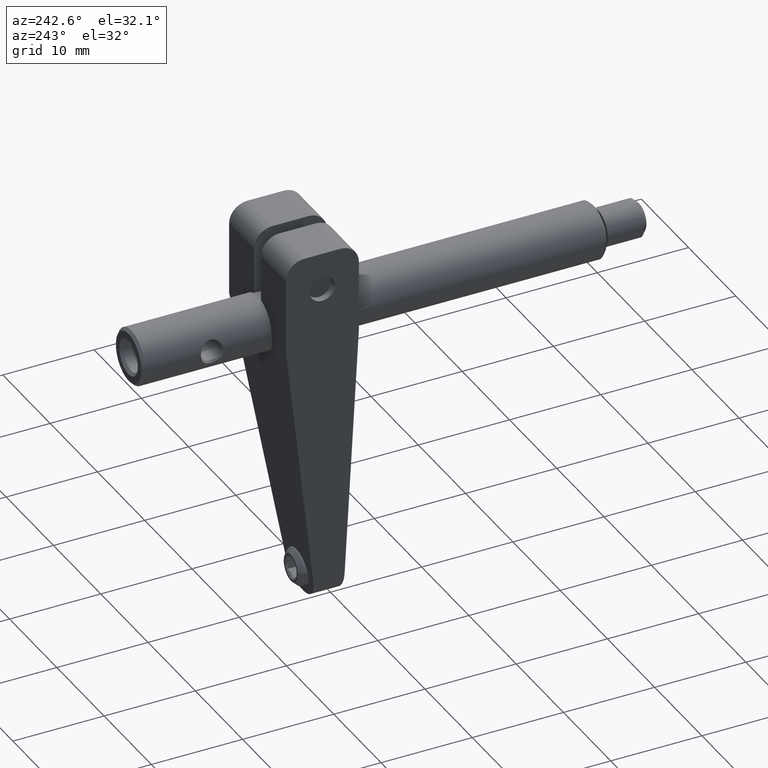
[diagram: clean part render]
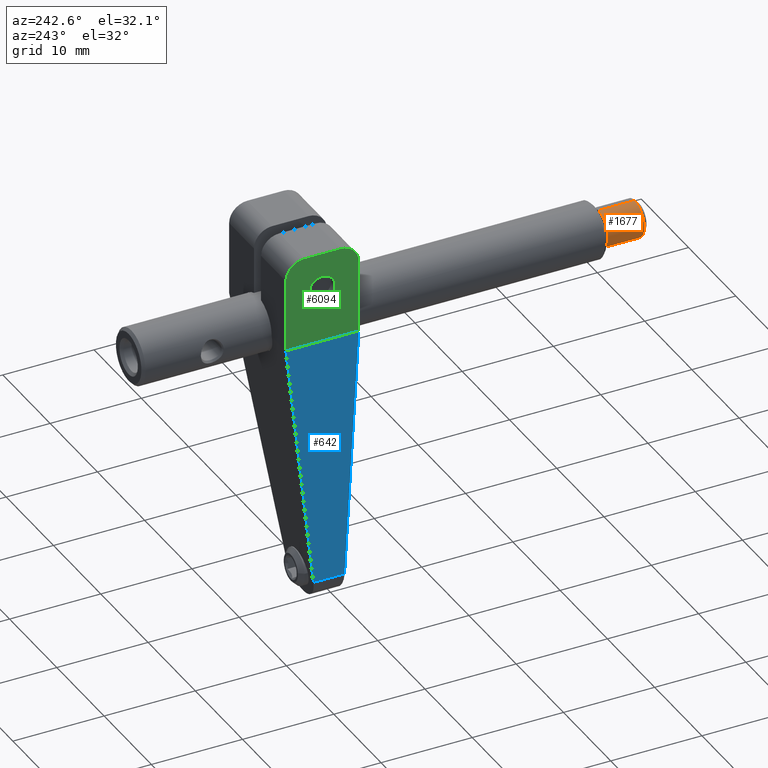
[diagram: same view with three faces highlighted in distinct colors, each labeled with its STEP entity id]
A machine part, auxiliary view with three faces highlighted in distinct colors.
Their STEP definitions:

[orange] entity #1677 — the highlighted cylindrical surface (edge-blend (fillet) strip) has radius 2 mm, axis along (-0, -1, 0).
#129 = DIRECTION ( 'NONE',  ( 7.524126418315677842E-17, 1.000000000000000000, -7.612291374223364996E-17 ) ) ;
#178 = DIRECTION ( 'NONE',  ( 1.249000902703302094E-16, 0.0000000000000000000, 1.000000000000000000 ) ) ;
#200 = CARTESIAN_POINT ( 'NONE',  ( 2.471266697707588180E-15, -33.37046049776430579, -8.717379670110583827E-15 ) ) ;
#321 = EDGE_CURVE ( 'NONE', #4051, #4746, #2092, .T. ) ;
#421 = DIRECTION ( 'NONE',  ( -7.524126418315677842E-17, -1.000000000000000000, 7.612291374223364996E-17 ) ) ;
#701 = AXIS2_PLACEMENT_3D ( 'NONE', #1767, #3150, #3759 ) ;
#1029 = ORIENTED_EDGE ( 'NONE', *, *, #4700, .F. ) ;
#1089 = CARTESIAN_POINT ( 'NONE',  ( 2.772231754440213025E-15, -29.37046049776450829, -9.021871325079517737E-15 ) ) ;
#1554 = DIRECTION ( 'NONE',  ( 1.249000902703302094E-16, 0.0000000000000000000, 1.000000000000000000 ) ) ;
#1562 = LINE ( 'NONE', #3568, #2731 ) ;
#1568 = ORIENTED_EDGE ( 'NONE', *, *, #3680, .T. ) ;
#1570 = EDGE_LOOP ( 'NONE', ( #2839, #1568, #6113, #1029 ) ) ;
#1659 = DIRECTION ( 'NONE',  ( 7.524126418315677842E-17, 1.000000000000000000, -7.612291374223364996E-17 ) ) ;
#1677 = ADVANCED_FACE ( 'NONE', ( #6136 ), #3177, .T. ) ;
#1767 = CARTESIAN_POINT ( 'NONE',  ( 2.809852386531791230E-15, -28.87046049776450829, -9.059932781950636053E-15 ) ) ;
#2068 = DIRECTION ( 'NONE',  ( -7.524126418315677842E-17, -1.000000000000000000, 7.612291374223364996E-17 ) ) ;
#2092 = CIRCLE ( 'NONE', #6419, 2.000000000000000000 ) ;
#2731 = VECTOR ( 'NONE', #2068, 1000.000000000000000 ) ;
#2839 = ORIENTED_EDGE ( 'NONE', *, *, #321, .F. ) ;
#3150 = DIRECTION ( 'NONE',  ( -7.524126418315677842E-17, -1.000000000000000000, 7.612291374223364996E-17 ) ) ;
#3177 = CYLINDRICAL_SURFACE ( 'NONE', #701, 2.000000000000000000 ) ;
#3207 = EDGE_CURVE ( 'NONE', #5375, #3229, #4851, .T. ) ;
#3229 = VERTEX_POINT ( 'NONE', #4634 ) ;
#3445 = LINE ( 'NONE', #5297, #4147 ) ;
#3568 = CARTESIAN_POINT ( 'NONE',  ( 3.059652567072451846E-15, -28.87046049776450829, 1.999999999999990896 ) ) ;
#3680 = EDGE_CURVE ( 'NONE', #4051, #5375, #3445, .T. ) ;
#3759 = DIRECTION ( 'NONE',  ( 1.249000902703302094E-16, 0.0000000000000000000, 1.000000000000000000 ) ) ;
#4051 = VERTEX_POINT ( 'NONE', #4370 ) ;
#4147 = VECTOR ( 'NONE', #421, 1000.000000000000000 ) ;
#4370 = CARTESIAN_POINT ( 'NONE',  ( 2.127019685703781918E-15, -29.37046049776450829, -2.000000000000009326 ) ) ;
#4634 = CARTESIAN_POINT ( 'NONE',  ( 2.476137518418779683E-15, -33.37046049776430579, 1.999999999999996669 ) ) ;
#4700 = EDGE_CURVE ( 'NONE', #4746, #3229, #1562, .T. ) ;
#4746 = VERTEX_POINT ( 'NONE', #5530 ) ;
#4851 = CIRCLE ( 'NONE', #5417, 2.000000000000000000 ) ;
#5297 = CARTESIAN_POINT ( 'NONE',  ( 2.315122846161662684E-15, -28.87046049776450829, -2.000000000000009326 ) ) ;
#5375 = VERTEX_POINT ( 'NONE', #5830 ) ;
#5417 = AXIS2_PLACEMENT_3D ( 'NONE', #200, #1659, #178 ) ;
#5530 = CARTESIAN_POINT ( 'NONE',  ( 3.022031934980873642E-15, -29.37046049776450829, 1.999999999999990896 ) ) ;
#5830 = CARTESIAN_POINT ( 'NONE',  ( 2.221466517166927169E-15, -33.37046049776430579, -2.000000000000013323 ) ) ;
#6113 = ORIENTED_EDGE ( 'NONE', *, *, #3207, .T. ) ;
#6136 = FACE_OUTER_BOUND ( 'NONE', #1570, .T. ) ;
#6419 = AXIS2_PLACEMENT_3D ( 'NONE', #1089, #129, #1554 ) ;

[blue] entity #642 — the highlighted planar face has unit normal (0.9949, -0, 0.1013).
#436 = CARTESIAN_POINT ( 'NONE',  ( -3.054416292723197923, 3.523503927922773116, -28.91816462561913070 ) ) ;
#642 = ADVANCED_FACE ( 'NONE', ( #2864 ), #5456, .F. ) ;
#654 = ORIENTED_EDGE ( 'NONE', *, *, #900, .F. ) ;
#703 = EDGE_CURVE ( 'NONE', #5943, #5069, #1379, .T. ) ;
#900 = EDGE_CURVE ( 'NONE', #4311, #5069, #2633, .T. ) ;
#1201 = CARTESIAN_POINT ( 'NONE',  ( -2.984557093065598465, 3.417336708130938927, -29.60400486547437993 ) ) ;
#1379 = LINE ( 'NONE', #2085, #2093 ) ;
#1611 = AXIS2_PLACEMENT_3D ( 'NONE', #2476, #2983, #3434 ) ;
#1808 = CARTESIAN_POINT ( 'NONE',  ( -6.000000000000052403, 8.000000000000000000, 2.572361415718436921E-15 ) ) ;
#1908 = DIRECTION ( 'NONE',  ( 0.1001542559867147214, -0.1522075683738858543, -0.9832608916953101685 ) ) ;
#2085 = CARTESIAN_POINT ( 'NONE',  ( -2.984557093065598465, 7.231732120549430660E-15, -29.60400486547437993 ) ) ;
#2093 = VECTOR ( 'NONE', #6035, 1000.000000000000000 ) ;
#2115 = ORIENTED_EDGE ( 'NONE', *, *, #703, .T. ) ;
#2354 = LINE ( 'NONE', #4398, #4304 ) ;
#2404 = VECTOR ( 'NONE', #4176, 1000.000000000000000 ) ;
#2413 = VECTOR ( 'NONE', #1908, 1000.000000000000114 ) ;
#2476 = CARTESIAN_POINT ( 'NONE',  ( -2.984557093065598465, 8.000000000000007105, -29.60400486547437637 ) ) ;
#2633 = LINE ( 'NONE', #4018, #2404 ) ;
#2864 = FACE_OUTER_BOUND ( 'NONE', #4470, .T. ) ;
#2983 = DIRECTION ( 'NONE',  ( 0.9948523643551911988, -7.150080595686750573E-18, 0.1013349551580598612 ) ) ;
#3121 = CARTESIAN_POINT ( 'NONE',  ( -6.000000000000052403, -1.072736176634379454E-16, 8.326672684688777591E-17 ) ) ;
#3434 = DIRECTION ( 'NONE',  ( 0.1013349551580598473, 2.466297125627225561E-16, -0.9948523643551910878 ) ) ;
#3613 = EDGE_CURVE ( 'NONE', #5851, #5943, #2354, .T. ) ;
#3902 = EDGE_CURVE ( 'NONE', #4311, #5851, #6392, .T. ) ;
#4018 = CARTESIAN_POINT ( 'NONE',  ( -6.000000000000052403, 8.000000000000000000, 2.051944372925394398E-15 ) ) ;
#4148 = CARTESIAN_POINT ( 'NONE',  ( -2.984557093065598465, 7.231732120549430660E-15, -29.60400486547437993 ) ) ;
#4176 = DIRECTION ( 'NONE',  ( 1.787893627723963292E-17, -1.000000000000000000, -2.460847057598134572E-16 ) ) ;
#4304 = VECTOR ( 'NONE', #5346, 1000.000000000000000 ) ;
#4311 = VERTEX_POINT ( 'NONE', #1808 ) ;
#4398 = CARTESIAN_POINT ( 'NONE',  ( -2.984557093065598465, 8.000000000000007105, -29.60400486547437637 ) ) ;
#4460 = ORIENTED_EDGE ( 'NONE', *, *, #3613, .T. ) ;
#4470 = EDGE_LOOP ( 'NONE', ( #654, #6187, #4460, #2115 ) ) ;
#5069 = VERTEX_POINT ( 'NONE', #3121 ) ;
#5346 = DIRECTION ( 'NONE',  ( 1.787893627723963292E-17, -1.000000000000000000, -2.460847057598134572E-16 ) ) ;
#5456 = PLANE ( 'NONE',  #1611 ) ;
#5851 = VERTEX_POINT ( 'NONE', #1201 ) ;
#5943 = VERTEX_POINT ( 'NONE', #4148 ) ;
#6035 = DIRECTION ( 'NONE',  ( -0.1013349551580598612, -2.466297125627226547E-16, 0.9948523643551911988 ) ) ;
#6187 = ORIENTED_EDGE ( 'NONE', *, *, #3902, .T. ) ;
#6392 = LINE ( 'NONE', #436, #2413 ) ;

[green] entity #6094 — the highlighted planar face has unit normal (1, 0, -0).
#74 = EDGE_CURVE ( 'NONE', #2809, #665, #5447, .T. ) ;
#152 = CARTESIAN_POINT ( 'NONE',  ( -6.000000000000051514, 3.999999999999998224, 7.400000000000050981 ) ) ;
#157 = ORIENTED_EDGE ( 'NONE', *, *, #4898, .T. ) ;
#198 = CARTESIAN_POINT ( 'NONE',  ( -6.000000000000051514, 1.999999999999997780, 8.000000000000049738 ) ) ;
#306 = CIRCLE ( 'NONE', #1172, 1.400000000000007905 ) ;
#325 = CARTESIAN_POINT ( 'NONE',  ( -6.000000000000051514, 7.999999999999998224, 10.00000000000005151 ) ) ;
#392 = ORIENTED_EDGE ( 'NONE', *, *, #4210, .T. ) ;
#414 = ORIENTED_EDGE ( 'NONE', *, *, #74, .T. ) ;
#439 = AXIS2_PLACEMENT_3D ( 'NONE', #3216, #4211, #4297 ) ;
#480 = ORIENTED_EDGE ( 'NONE', *, *, #3779, .F. ) ;
#553 = DIRECTION ( 'NONE',  ( -1.000000000000000000, -1.787893627723955588E-17, 1.006139616066549594E-16 ) ) ;
#645 = CARTESIAN_POINT ( 'NONE',  ( -6.000000000000051514, 7.999999999999998224, 10.00000000000005151 ) ) ;
#665 = VERTEX_POINT ( 'NONE', #1466 ) ;
#900 = EDGE_CURVE ( 'NONE', #4311, #5069, #2633, .T. ) ;
#923 = FACE_OUTER_BOUND ( 'NONE', #1494, .T. ) ;
#1083 = CARTESIAN_POINT ( 'NONE',  ( -6.000000000000051514, -2.075951263741900478E-15, 8.000000000000049738 ) ) ;
#1172 = AXIS2_PLACEMENT_3D ( 'NONE', #4779, #3315, #2787 ) ;
#1466 = CARTESIAN_POINT ( 'NONE',  ( -6.000000000000051514, 1.999999999999997335, 10.00000000000004974 ) ) ;
#1494 = EDGE_LOOP ( 'NONE', ( #4153, #157, #480, #2921, #4232, #414 ) ) ;
#1617 = CARTESIAN_POINT ( 'NONE',  ( -6.000000000000051514, 5.999999999999997335, 10.00000000000005151 ) ) ;
#1637 = VERTEX_POINT ( 'NONE', #152 ) ;
#1729 = VERTEX_POINT ( 'NONE', #2310 ) ;
#1808 = CARTESIAN_POINT ( 'NONE',  ( -6.000000000000052403, 8.000000000000000000, 2.572361415718436921E-15 ) ) ;
#2310 = CARTESIAN_POINT ( 'NONE',  ( -6.000000000000051514, 7.999999999999998224, 8.000000000000051514 ) ) ;
#2372 = VERTEX_POINT ( 'NONE', #4161 ) ;
#2404 = VECTOR ( 'NONE', #4176, 1000.000000000000000 ) ;
#2421 = CIRCLE ( 'NONE', #4924, 2.000000000000012879 ) ;
#2588 = DIRECTION ( 'NONE',  ( -1.000000000000000000, -1.787893627723955588E-17, 1.006139616066549594E-16 ) ) ;
#2633 = LINE ( 'NONE', #4018, #2404 ) ;
#2695 = DIRECTION ( 'NONE',  ( 0.0000000000000000000, 2.168404344970994816E-16, -1.000000000000000000 ) ) ;
#2777 = EDGE_CURVE ( 'NONE', #2372, #1637, #5481, .T. ) ;
#2787 = DIRECTION ( 'NONE',  ( 0.0000000000000000000, 0.0000000000000000000, -1.000000000000000000 ) ) ;
#2809 = VERTEX_POINT ( 'NONE', #1083 ) ;
#2921 = ORIENTED_EDGE ( 'NONE', *, *, #900, .T. ) ;
#2949 = CARTESIAN_POINT ( 'NONE',  ( -6.000000000000051514, -2.568120675261514770E-15, 10.00000000000004974 ) ) ;
#3061 = ORIENTED_EDGE ( 'NONE', *, *, #2777, .T. ) ;
#3092 = CARTESIAN_POINT ( 'NONE',  ( -6.000000000000051514, 3.999999999999998224, 6.000000000000051514 ) ) ;
#3121 = CARTESIAN_POINT ( 'NONE',  ( -6.000000000000052403, -1.072736176634379454E-16, 8.326672684688777591E-17 ) ) ;
#3192 = FACE_BOUND ( 'NONE', #5136, .T. ) ;
#3215 = EDGE_CURVE ( 'NONE', #6021, #665, #4693, .T. ) ;
#3216 = CARTESIAN_POINT ( 'NONE',  ( -6.000000000000051514, 7.999999999999998224, 10.00000000000005151 ) ) ;
#3289 = LINE ( 'NONE', #325, #5549 ) ;
#3315 = DIRECTION ( 'NONE',  ( 1.000000000000000000, 1.787893627723955588E-17, -1.006139616066549594E-16 ) ) ;
#3604 = VECTOR ( 'NONE', #3649, 1000.000000000000000 ) ;
#3634 = LINE ( 'NONE', #2949, #4877 ) ;
#3649 = DIRECTION ( 'NONE',  ( 1.787893627723963292E-17, -1.000000000000000000, -2.460847057598134572E-16 ) ) ;
#3779 = EDGE_CURVE ( 'NONE', #4311, #1729, #3289, .T. ) ;
#4018 = CARTESIAN_POINT ( 'NONE',  ( -6.000000000000052403, 8.000000000000000000, 2.051944372925394398E-15 ) ) ;
#4153 = ORIENTED_EDGE ( 'NONE', *, *, #3215, .F. ) ;
#4161 = CARTESIAN_POINT ( 'NONE',  ( -6.000000000000051514, 3.999999999999998224, 4.600000000000043165 ) ) ;
#4176 = DIRECTION ( 'NONE',  ( 1.787893627723963292E-17, -1.000000000000000000, -2.460847057598134572E-16 ) ) ;
#4210 = EDGE_CURVE ( 'NONE', #1637, #2372, #306, .T. ) ;
#4211 = DIRECTION ( 'NONE',  ( 1.000000000000000000, 1.787893627723955588E-17, -1.006139616066548731E-16 ) ) ;
#4232 = ORIENTED_EDGE ( 'NONE', *, *, #6250, .T. ) ;
#4241 = AXIS2_PLACEMENT_3D ( 'NONE', #198, #553, #2695 ) ;
#4297 = DIRECTION ( 'NONE',  ( -1.006139616066548731E-16, 2.460847057598062588E-16, -1.000000000000000000 ) ) ;
#4311 = VERTEX_POINT ( 'NONE', #1808 ) ;
#4491 = DIRECTION ( 'NONE',  ( 1.006139616066548731E-16, -2.460847057598062588E-16, 1.000000000000000000 ) ) ;
#4582 = DIRECTION ( 'NONE',  ( 0.0000000000000000000, 0.0000000000000000000, -1.000000000000000000 ) ) ;
#4693 = LINE ( 'NONE', #645, #3604 ) ;
#4779 = CARTESIAN_POINT ( 'NONE',  ( -6.000000000000051514, 3.999999999999998224, 6.000000000000051514 ) ) ;
#4877 = VECTOR ( 'NONE', #4491, 1000.000000000000000 ) ;
#4898 = EDGE_CURVE ( 'NONE', #6021, #1729, #2421, .T. ) ;
#4924 = AXIS2_PLACEMENT_3D ( 'NONE', #5652, #2588, #5130 ) ;
#5069 = VERTEX_POINT ( 'NONE', #3121 ) ;
#5130 = DIRECTION ( 'NONE',  ( 0.0000000000000000000, 4.336808689941989633E-16, -1.000000000000000000 ) ) ;
#5136 = EDGE_LOOP ( 'NONE', ( #3061, #392 ) ) ;
#5267 = DIRECTION ( 'NONE',  ( 1.006139616066548731E-16, -2.460847057598062588E-16, 1.000000000000000000 ) ) ;
#5447 = CIRCLE ( 'NONE', #4241, 2.000000000000012879 ) ;
#5481 = CIRCLE ( 'NONE', #5970, 1.400000000000007905 ) ;
#5549 = VECTOR ( 'NONE', #5267, 1000.000000000000000 ) ;
#5652 = CARTESIAN_POINT ( 'NONE',  ( -6.000000000000051514, 5.999999999999998224, 8.000000000000051514 ) ) ;
#5970 = AXIS2_PLACEMENT_3D ( 'NONE', #3092, #6138, #4582 ) ;
#6021 = VERTEX_POINT ( 'NONE', #1617 ) ;
#6094 = ADVANCED_FACE ( 'NONE', ( #3192, #923 ), #6135, .F. ) ;
#6135 = PLANE ( 'NONE',  #439 ) ;
#6138 = DIRECTION ( 'NONE',  ( 1.000000000000000000, 1.787893627723955588E-17, -1.006139616066549594E-16 ) ) ;
#6250 = EDGE_CURVE ( 'NONE', #5069, #2809, #3634, .T. ) ;